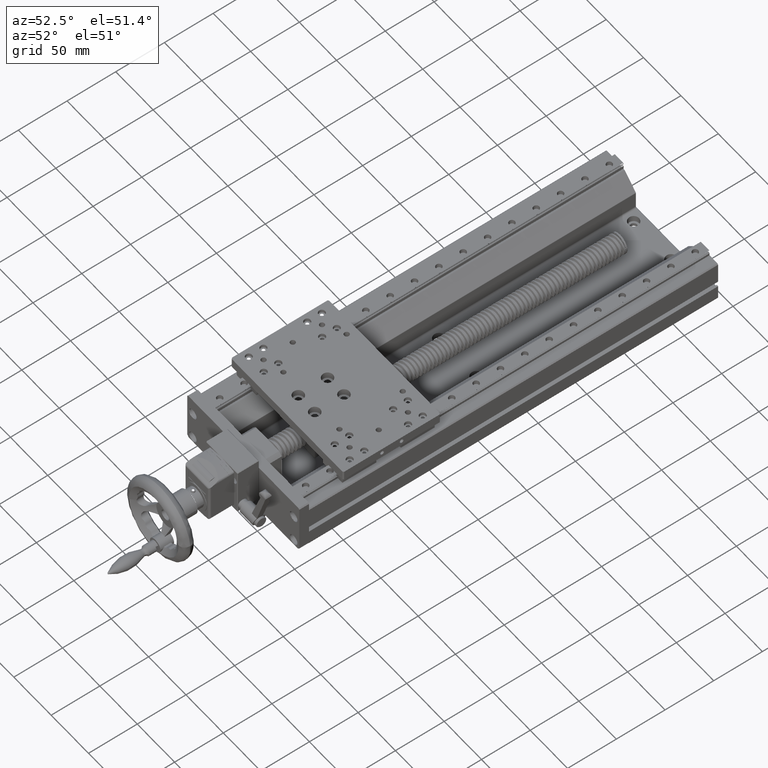
[diagram: clean part render]
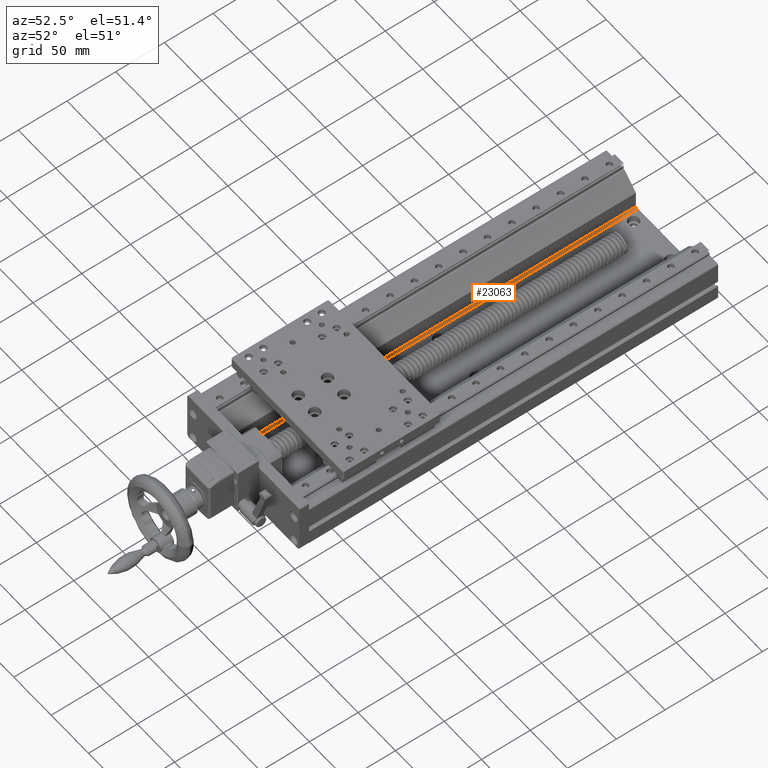
[diagram: same view with one face highlighted and labeled with its STEP entity id]
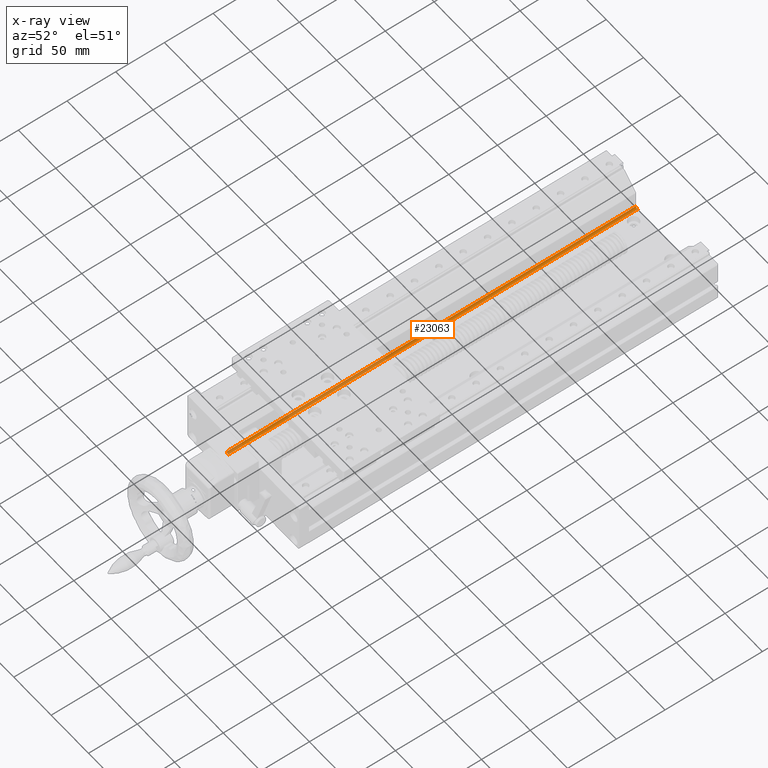
[diagram: x-ray of the same camera — body ghosted, the highlighted face saturated]
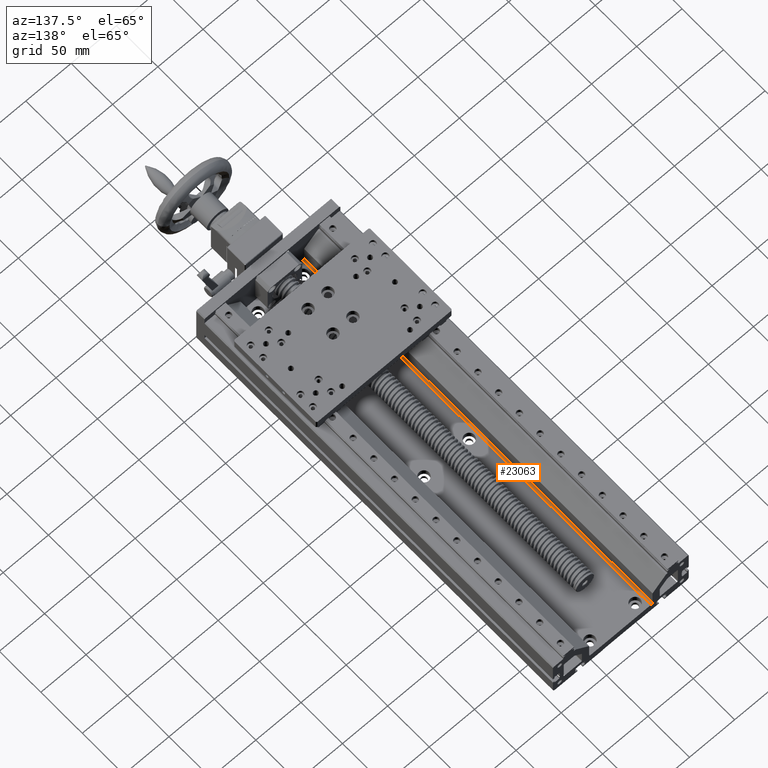
[diagram: same view with one face highlighted and labeled with its STEP entity id]
A machine part, auxiliary view. The second image highlights one B-rep face of the part: STEP entity #23063.
The next image is the same camera in x-ray: the body ghosted, the highlighted face saturated — about 28% of this face is hidden behind the body in this view.
A second angle (auxiliary view) of the same face is appended — the face is thin or edge-on in the first view.
In plain terms, the highlighted cylindrical surface (edge-blend (fillet) strip) has radius 2 mm, axis along (0, 1, -0).
Its self-contained STEP definition (entity closure, byte-faithful):
#317 = CARTESIAN_POINT ( 'NONE',  ( -62.82647947980019154, -133.0472645979086792, -8.000000000002671641 ) ) ;
#2369 = VERTEX_POINT ( 'NONE', #47697 ) ;
#2564 = ORIENTED_EDGE ( 'NONE', *, *, #17797, .T. ) ;
#2700 = DIRECTION ( 'NONE',  ( 3.491481338843133355E-15, 1.000000000000000000, -3.657132581846951845E-29 ) ) ;
#3218 = CARTESIAN_POINT ( 'NONE',  ( -62.82647947979874914, 286.9527354020913208, -8.000000000002671641 ) ) ;
#3524 = LINE ( 'NONE', #317, #26006 ) ;
#3874 = VERTEX_POINT ( 'NONE', #3218 ) ;
#4015 = DIRECTION ( 'NONE',  ( 3.491481338843133355E-15, 1.000000000000000000, -3.657132581846951845E-29 ) ) ;
#4274 = EDGE_CURVE ( 'NONE', #2369, #31508, #43622, .T. ) ;
#5978 = DIRECTION ( 'NONE',  ( 3.469446951954574233E-15, 0.000000000000000000, 1.000000000000000000 ) ) ;
#6575 = CARTESIAN_POINT ( 'NONE',  ( -62.82647947980019154, -133.0472645979086792, -8.000000000002671641 ) ) ;
#7138 = DIRECTION ( 'NONE',  ( 3.469446951954574233E-15, 0.000000000000000000, 1.000000000000000000 ) ) ;
#8854 = VECTOR ( 'NONE', #9756, 1000.000000000000000 ) ;
#8885 = CARTESIAN_POINT ( 'NONE',  ( -60.82647947979930336, 286.9527354020913208, -10.00000000000156319 ) ) ;
#9756 = DIRECTION ( 'NONE',  ( 3.491481338843133355E-15, 1.000000000000000000, -3.657132581846951845E-29 ) ) ;
#12994 = CARTESIAN_POINT ( 'NONE',  ( -60.82647947980074576, -133.0472645979086792, -10.00000000000156319 ) ) ;
#15265 = CIRCLE ( 'NONE', #21569, 1.999999999999446665 ) ;
#17797 = EDGE_CURVE ( 'NONE', #33918, #2369, #45551, .T. ) ;
#20302 = DIRECTION ( 'NONE',  ( 3.469446951954574233E-15, 0.000000000000000000, 1.000000000000000000 ) ) ;
#21451 = FACE_OUTER_BOUND ( 'NONE', #41707, .T. ) ;
#21569 = AXIS2_PLACEMENT_3D ( 'NONE', #47515, #35650, #5978 ) ;
#23063 = ADVANCED_FACE ( 'NONE', ( #21451 ), #36542, .F. ) ;
#24207 = CARTESIAN_POINT ( 'NONE',  ( -60.82647947980074576, -133.0472645979086792, -8.000000000002671641 ) ) ;
#24219 = AXIS2_PLACEMENT_3D ( 'NONE', #35413, #39350, #20302 ) ;
#26006 = VECTOR ( 'NONE', #4015, 1000.000000000000000 ) ;
#31407 = AXIS2_PLACEMENT_3D ( 'NONE', #24207, #2700, #7138 ) ;
#31508 = VERTEX_POINT ( 'NONE', #8885 ) ;
#33918 = VERTEX_POINT ( 'NONE', #6575 ) ;
#34472 = ORIENTED_EDGE ( 'NONE', *, *, #48454, .F. ) ;
#35413 = CARTESIAN_POINT ( 'NONE',  ( -60.82647947980074576, -133.0472645979086792, -8.000000000002671641 ) ) ;
#35650 = DIRECTION ( 'NONE',  ( -3.491481338843133355E-15, -1.000000000000000000, 3.657132581846951845E-29 ) ) ;
#35775 = EDGE_CURVE ( 'NONE', #3874, #31508, #15265, .T. ) ;
#36542 = CYLINDRICAL_SURFACE ( 'NONE', #31407, 1.999999999999446665 ) ;
#39014 = ORIENTED_EDGE ( 'NONE', *, *, #4274, .T. ) ;
#39350 = DIRECTION ( 'NONE',  ( -3.491481338843133355E-15, -1.000000000000000000, 3.657132581846951845E-29 ) ) ;
#41707 = EDGE_LOOP ( 'NONE', ( #44104, #34472, #2564, #39014 ) ) ;
#43622 = LINE ( 'NONE', #12994, #8854 ) ;
#44104 = ORIENTED_EDGE ( 'NONE', *, *, #35775, .F. ) ;
#45551 = CIRCLE ( 'NONE', #24219, 1.999999999999446665 ) ;
#47515 = CARTESIAN_POINT ( 'NONE',  ( -60.82647947979930336, 286.9527354020913208, -8.000000000002671641 ) ) ;
#47697 = CARTESIAN_POINT ( 'NONE',  ( -60.82647947980074576, -133.0472645979086792, -10.00000000000156319 ) ) ;
#48454 = EDGE_CURVE ( 'NONE', #33918, #3874, #3524, .T. ) ;